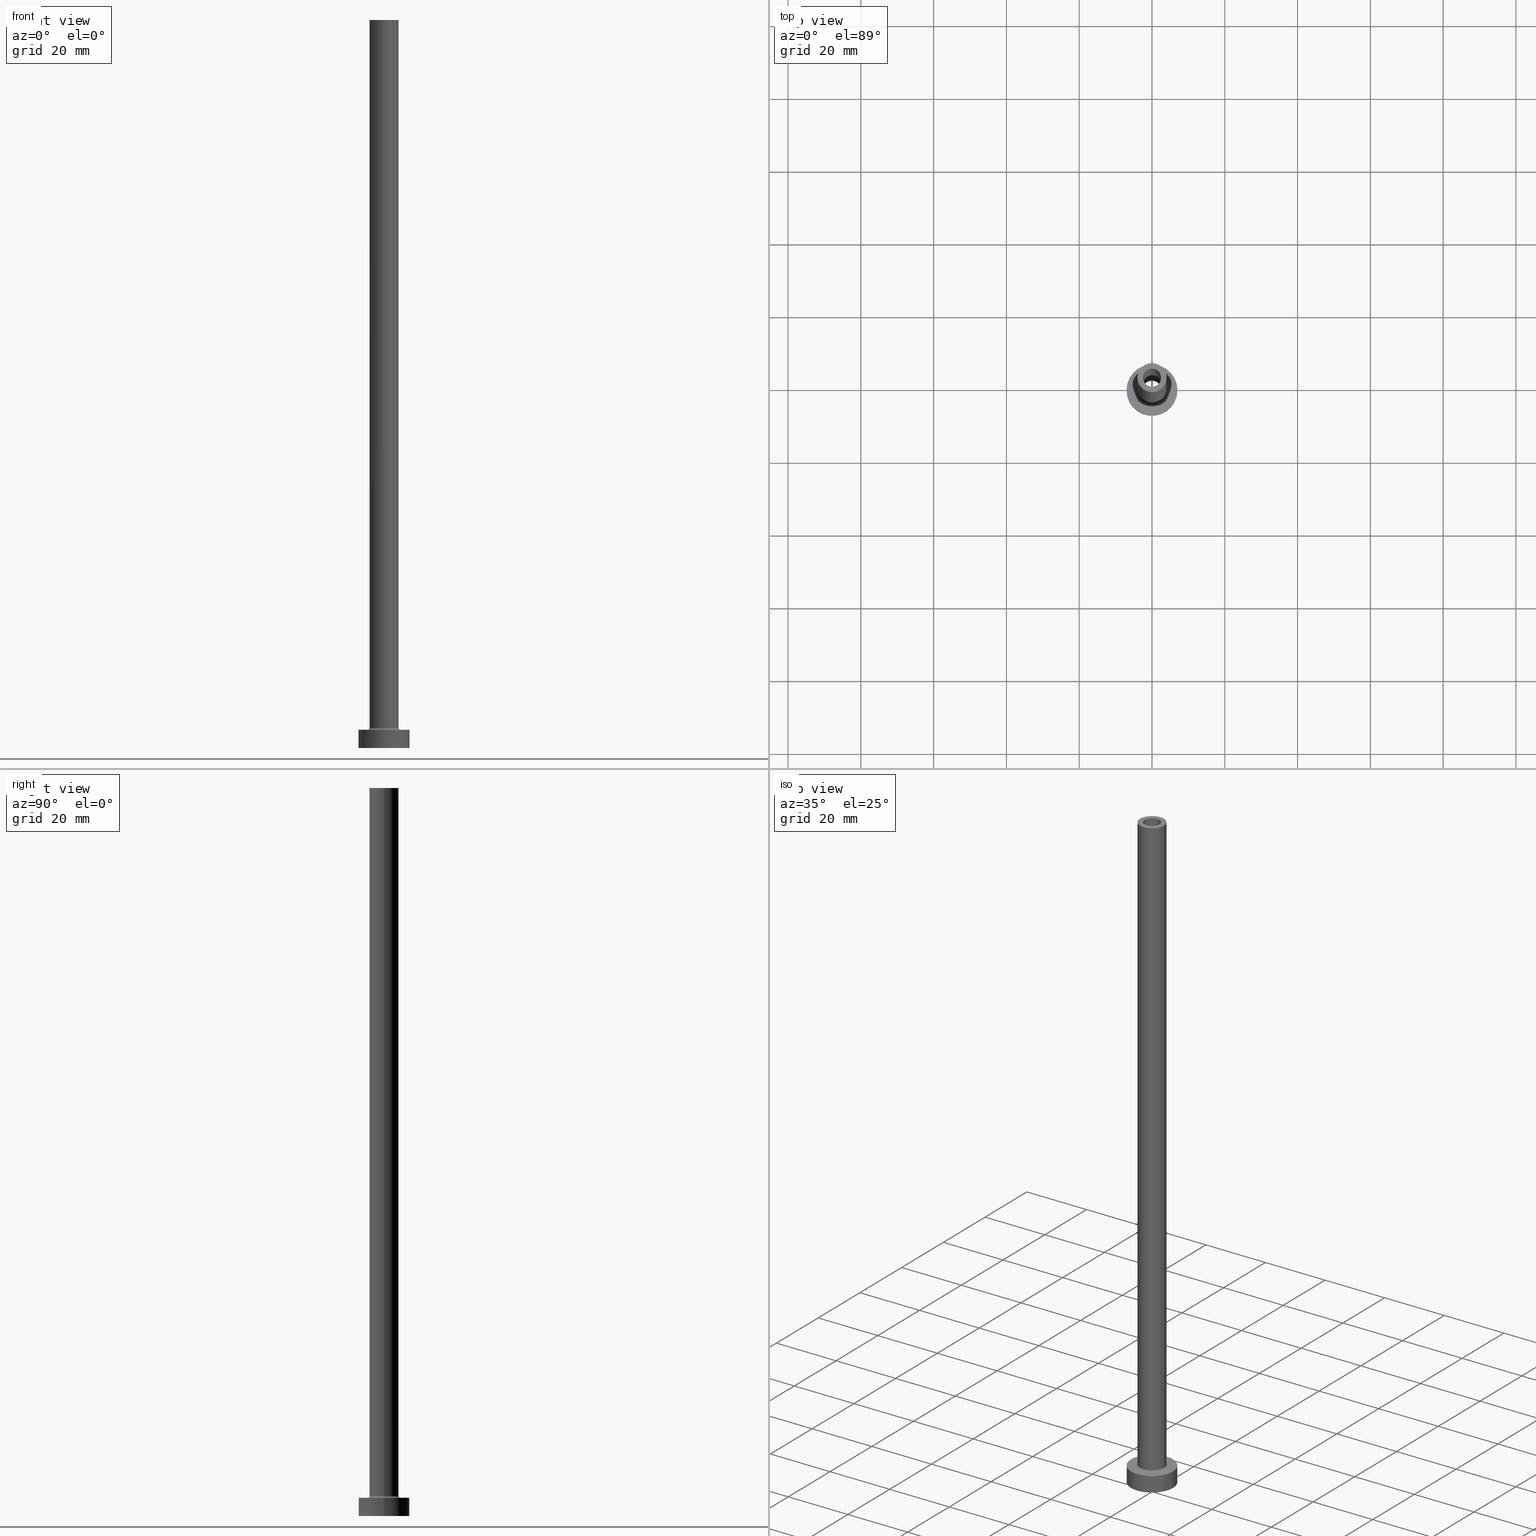
[diagram: canonical four-view strip — front | top / right | iso, engineering-drawing reading convention]
A machine part, canonical four-view strip (front | top / right | iso — engineering-drawing reading convention). The complete STEP part file that produces these views, byte-faithful:
ISO-10303-21;
HEADER;
FILE_DESCRIPTION (( 'STEP AP203' ),
    '1' );
FILE_NAME ('ef07.STEP',
    '2023-02-13T10:13:02',
    ( '' ),
    ( '' ),
    'SwSTEP 2.0',
    'SolidWorks 2019',
    '' );
FILE_SCHEMA (( 'CONFIG_CONTROL_DESIGN' ));
ENDSEC;

DATA;
#1 = APPROVAL_DATE_TIME ( #177, #4 ) ;
#2 = DIRECTION ( 'NONE',  ( -0.000000000000000000, -0.000000000000000000, -1.000000000000000000 ) ) ;
#3 = AXIS2_PLACEMENT_3D ( 'NONE', #78, #307, #124 ) ;
#4 = APPROVAL ( #142, 'NEUR�EN�' ) ;
#5 = DIRECTION ( 'NONE',  ( 1.000000000000000000, 0.000000000000000000, 0.000000000000000000 ) ) ;
#6 = PERSON_AND_ORGANIZATION ( #97, #112 ) ;
#7 = DIRECTION ( 'NONE',  ( 1.000000000000000000, 0.000000000000000000, 0.000000000000000000 ) ) ;
#8 = AXIS2_PLACEMENT_3D ( 'NONE', #171, #417, #59 ) ;
#9 = CARTESIAN_POINT ( 'NONE',  ( 0.000000000000000000, 0.000000000000000000, 0.000000000000000000 ) ) ;
#10 = APPROVAL_PERSON_ORGANIZATION ( #359, #317, #460 ) ;
#11 = CIRCLE ( 'NONE', #46, 7.000000000000000000 ) ;
#12 = EDGE_CURVE ( 'NONE', #173, #242, #96, .T. ) ;
#13 = CARTESIAN_POINT ( 'NONE',  ( 0.000000000000000000, 0.000000000000000000, 155.0000000000000284 ) ) ;
#14 = ORIENTED_EDGE ( 'NONE', *, *, #55, .T. ) ;
#15 = DIRECTION ( 'NONE',  ( 0.000000000000000000, 0.000000000000000000, -1.000000000000000000 ) ) ;
#16 = CLOSED_SHELL ( 'NONE', ( #74, #269, #335, #18, #364, #295, #279, #377, #134, #143, #239, #285, #261, #202 ) ) ;
#17 = FACE_OUTER_BOUND ( 'NONE', #50, .T. ) ;
#18 = ADVANCED_FACE ( 'NONE', ( #349 ), #28, .T. ) ;
#19 = EDGE_LOOP ( 'NONE', ( #274, #455 ) ) ;
#20 = AXIS2_PLACEMENT_3D ( 'NONE', #13, #227, #375 ) ;
#21 = CARTESIAN_POINT ( 'NONE',  ( 0.000000000000000000, 0.000000000000000000, 162.4953318805773961 ) ) ;
#22 = DIRECTION ( 'NONE',  ( -0.000000000000000000, -0.000000000000000000, -1.000000000000000000 ) ) ;
#23 = CARTESIAN_POINT ( 'NONE',  ( 0.000000000000000000, 0.000000000000000000, 0.000000000000000000 ) ) ;
#24 = CIRCLE ( 'NONE', #199, 0.5000000000000004441 ) ;
#25 = FACE_OUTER_BOUND ( 'NONE', #19, .T. ) ;
#26 = ORIENTED_EDGE ( 'NONE', *, *, #55, .F. ) ;
#27 = FACE_OUTER_BOUND ( 'NONE', #93, .T. ) ;
#28 = CYLINDRICAL_SURFACE ( 'NONE', #315, 4.000000000000000000 ) ;
#29 = DIRECTION ( 'NONE',  ( -1.000000000000000000, 0.000000000000000000, 0.000000000000000000 ) ) ;
#30 = VERTEX_POINT ( 'NONE', #213 ) ;
#31 = EDGE_CURVE ( 'NONE', #209, #299, #190, .T. ) ;
#32 = PERSON_AND_ORGANIZATION_ROLE ( 'design_owner' ) ;
#33 = ORIENTED_EDGE ( 'NONE', *, *, #370, .T. ) ;
#34 = SECURITY_CLASSIFICATION_LEVEL ( 'unclassified' ) ;
#35 = CARTESIAN_POINT ( 'NONE',  ( 0.000000000000000000, 0.000000000000000000, 200.0000000000000000 ) ) ;
#36 = CYLINDRICAL_SURFACE ( 'NONE', #216, 4.000000000000000000 ) ;
#37 = DIRECTION ( 'NONE',  ( 0.000000000000000000, 0.000000000000000000, -1.000000000000000000 ) ) ;
#38 = CIRCLE ( 'NONE', #420, 2.500000000000000000 ) ;
#39 = DATE_TIME_ROLE ( 'creation_date' ) ;
#40 = CARTESIAN_POINT ( 'NONE',  ( 7.000000000000000000, 8.572527594031473190E-16, 5.000000000000000000 ) ) ;
#41 = VERTEX_POINT ( 'NONE', #249 ) ;
#42 = LINE ( 'NONE', #433, #399 ) ;
#43 = VERTEX_POINT ( 'NONE', #40 ) ;
#44 = CARTESIAN_POINT ( 'NONE',  ( 0.000000000000000000, 0.000000000000000000, 5.500000000000005329 ) ) ;
#45 =( GEOMETRIC_REPRESENTATION_CONTEXT ( 3 ) GLOBAL_UNCERTAINTY_ASSIGNED_CONTEXT ( ( #104 ) ) GLOBAL_UNIT_ASSIGNED_CONTEXT ( ( #58, #174, #88 ) ) REPRESENTATION_CONTEXT ( 'NONE', 'WORKASPACE' ) );
#46 = AXIS2_PLACEMENT_3D ( 'NONE', #273, #135, #414 ) ;
#47 = DIRECTION ( 'NONE',  ( 1.000000000000000000, 0.000000000000000000, 0.000000000000000000 ) ) ;
#48 = EDGE_CURVE ( 'NONE', #367, #30, #67, .T. ) ;
#49 = FACE_OUTER_BOUND ( 'NONE', #109, .T. ) ;
#50 = EDGE_LOOP ( 'NONE', ( #178, #384 ) ) ;
#51 = DIRECTION ( 'NONE',  ( -0.000000000000000000, -0.000000000000000000, -1.000000000000000000 ) ) ;
#52 = APPLICATION_CONTEXT ( 'configuration controlled 3d designs of mechanical parts and assemblies' ) ;
#53 = AXIS2_PLACEMENT_3D ( 'NONE', #172, #22, #29 ) ;
#54 = DIRECTION ( 'NONE',  ( 1.000000000000000000, 0.000000000000000000, 0.000000000000000000 ) ) ;
#55 = EDGE_CURVE ( 'NONE', #441, #388, #263, .T. ) ;
#56 = DIRECTION ( 'NONE',  ( 1.000000000000000000, 0.000000000000000000, 0.000000000000000000 ) ) ;
#57 = ORIENTED_EDGE ( 'NONE', *, *, #370, .F. ) ;
#58 =( LENGTH_UNIT ( ) NAMED_UNIT ( * ) SI_UNIT ( .MILLI., .METRE. ) );
#59 = DIRECTION ( 'NONE',  ( 1.000000000000000000, 0.000000000000000000, 0.000000000000000000 ) ) ;
#60 = EDGE_LOOP ( 'NONE', ( #189, #259, #403, #423 ) ) ;
#61 = PERSON_AND_ORGANIZATION_ROLE ( 'design_supplier' ) ;
#62 = ORIENTED_EDGE ( 'NONE', *, *, #450, .F. ) ;
#63 = LOCAL_TIME ( 11, 13, 2.000000000000000000, #327 ) ;
#64 = DATE_AND_TIME ( #179, #405 ) ;
#65 = CARTESIAN_POINT ( 'NONE',  ( 0.000000000000000000, 0.000000000000000000, 200.0000000000000000 ) ) ;
#66 = CC_DESIGN_PERSON_AND_ORGANIZATION_ASSIGNMENT ( #6, #362, ( #456 ) ) ;
#67 = LINE ( 'NONE', #321, #126 ) ;
#68 = CARTESIAN_POINT ( 'NONE',  ( 0.000000000000000000, 0.000000000000000000, 0.000000000000000000 ) ) ;
#69 = CARTESIAN_POINT ( 'NONE',  ( 0.000000000000000000, 0.000000000000000000, 200.0000000000000000 ) ) ;
#70 = APPROVAL_DATE_TIME ( #293, #396 ) ;
#71 = CARTESIAN_POINT ( 'NONE',  ( 0.000000000000000000, 0.000000000000000000, 5.500000000000005329 ) ) ;
#72 = CIRCLE ( 'NONE', #137, 7.000000000000000000 ) ;
#73 = CARTESIAN_POINT ( 'NONE',  ( 0.000000000000000000, 0.000000000000000000, 200.0000000000000000 ) ) ;
#74 = ADVANCED_FACE ( 'NONE', ( #461 ), #360, .F. ) ;
#75 = ORIENTED_EDGE ( 'NONE', *, *, #165, .T. ) ;
#76 = DIRECTION ( 'NONE',  ( 1.000000000000000000, 0.000000000000000000, 0.000000000000000000 ) ) ;
#77 = ORIENTED_EDGE ( 'NONE', *, *, #200, .T. ) ;
#78 = CARTESIAN_POINT ( 'NONE',  ( 0.000000000000000000, 0.000000000000000000, 5.000000000000000000 ) ) ;
#79 = ORIENTED_EDGE ( 'NONE', *, *, #210, .T. ) ;
#80 = DIRECTION ( 'NONE',  ( 0.000000000000000000, 0.000000000000000000, 1.000000000000000000 ) ) ;
#81 = ORIENTED_EDGE ( 'NONE', *, *, #344, .T. ) ;
#82 = CARTESIAN_POINT ( 'NONE',  ( 7.000000000000000000, 8.572527594031473190E-16, 0.000000000000000000 ) ) ;
#83 = AXIS2_PLACEMENT_3D ( 'NONE', #270, #267, #264 ) ;
#84 = DIRECTION ( 'NONE',  ( -0.000000000000000000, -0.000000000000000000, -1.000000000000000000 ) ) ;
#85 = PRODUCT_DEFINITION ( 'NEZN�M�', '', #326, #211 ) ;
#86 = DIRECTION ( 'NONE',  ( 0.000000000000000000, 0.000000000000000000, -1.000000000000000000 ) ) ;
#87 = ORIENTED_EDGE ( 'NONE', *, *, #111, .T. ) ;
#88 =( NAMED_UNIT ( * ) SI_UNIT ( $, .STERADIAN. ) SOLID_ANGLE_UNIT ( ) );
#89 = ORIENTED_EDGE ( 'NONE', *, *, #450, .T. ) ;
#90 = AXIS2_PLACEMENT_3D ( 'NONE', #312, #280, #130 ) ;
#91 = EDGE_CURVE ( 'NONE', #316, #247, #434, .T. ) ;
#92 = DIRECTION ( 'NONE',  ( 0.000000000000000000, 0.000000000000000000, -1.000000000000000000 ) ) ;
#93 = EDGE_LOOP ( 'NONE', ( #203, #87, #347, #278 ) ) ;
#94 = CARTESIAN_POINT ( 'NONE',  ( -2.500000000000000000, 0.000000000000000000, 155.0000000000000284 ) ) ;
#95 = ORIENTED_EDGE ( 'NONE', *, *, #149, .F. ) ;
#96 = CIRCLE ( 'NONE', #8, 4.000000000000000000 ) ;
#97 = PERSON ( 'NEUR�EN�', 'NEUR�EN�', 'NEUR�EN�', ('NEUR�EN�'), ('NEUR�EN�'), ('NEUR�EN�') ) ;
#98 = DATE_AND_TIME ( #214, #184 ) ;
#99 = DIRECTION ( 'NONE',  ( -1.000000000000000000, 0.000000000000000000, 0.000000000000000000 ) ) ;
#100 = SHAPE_DEFINITION_REPRESENTATION ( #271, #235 ) ;
#101 = CIRCLE ( 'NONE', #204, 2.649999999999999911 ) ;
#102 = DIRECTION ( 'NONE',  ( 1.000000000000000000, 0.000000000000000000, 0.000000000000000000 ) ) ;
#103 = CC_DESIGN_PERSON_AND_ORGANIZATION_ASSIGNMENT ( #254, #61, ( #326 ) ) ;
#104 = UNCERTAINTY_MEASURE_WITH_UNIT (LENGTH_MEASURE( 1.000000000000000082E-05 ), #58, 'distance_accuracy_value', 'NONE');
#105 = CARTESIAN_POINT ( 'NONE',  ( 0.000000000000000000, 0.000000000000000000, 155.0000000000000284 ) ) ;
#106 = EDGE_LOOP ( 'NONE', ( #262, #380, #244, #319 ) ) ;
#107 = PERSON_AND_ORGANIZATION_ROLE ( 'creator' ) ;
#108 = DIRECTION ( 'NONE',  ( -1.000000000000000000, 0.000000000000000000, 0.000000000000000000 ) ) ;
#109 = EDGE_LOOP ( 'NONE', ( #175, #196, #268, #139 ) ) ;
#110 = APPROVAL_DATE_TIME ( #98, #317 ) ;
#111 = EDGE_CURVE ( 'NONE', #43, #229, #113, .T. ) ;
#112 = ORGANIZATION ( 'NEUR�EN�', 'NEUR�EN�', '' ) ;
#113 = LINE ( 'NONE', #325, #308 ) ;
#114 = AXIS2_PLACEMENT_3D ( 'NONE', #65, #284, #185 ) ;
#115 = DIRECTION ( 'NONE',  ( 0.000000000000000000, 0.000000000000000000, 1.000000000000000000 ) ) ;
#116 = CARTESIAN_POINT ( 'NONE',  ( 4.000000000000000000, 4.898587196589412829E-16, 200.0000000000000000 ) ) ;
#117 = AXIS2_PLACEMENT_3D ( 'NONE', #69, #37, #108 ) ;
#118 = EDGE_CURVE ( 'NONE', #247, #316, #378, .T. ) ;
#119 = EDGE_LOOP ( 'NONE', ( #95, #75, #453, #443 ) ) ;
#120 = FACE_BOUND ( 'NONE', #223, .T. ) ;
#121 = AXIS2_PLACEMENT_3D ( 'NONE', #68, #429, #145 ) ;
#122 = AXIS2_PLACEMENT_3D ( 'NONE', #410, #51, #164 ) ;
#123 = ORIENTED_EDGE ( 'NONE', *, *, #186, .F. ) ;
#124 = DIRECTION ( 'NONE',  ( 1.000000000000000000, 0.000000000000000000, 0.000000000000000000 ) ) ;
#125 = LINE ( 'NONE', #368, #304 ) ;
#126 = VECTOR ( 'NONE', #215, 1000.000000000000000 ) ;
#127 = CC_DESIGN_PERSON_AND_ORGANIZATION_ASSIGNMENT ( #289, #32, ( #343 ) ) ;
#128 = DIRECTION ( 'NONE',  ( 0.000000000000000000, 0.000000000000000000, -1.000000000000000000 ) ) ;
#129 = CIRCLE ( 'NONE', #114, 4.000000000000000000 ) ;
#130 = DIRECTION ( 'NONE',  ( 1.000000000000000000, 0.000000000000000000, 0.000000000000000000 ) ) ;
#131 = PRODUCT_RELATED_PRODUCT_CATEGORY ( 'detail', '', ( #343 ) ) ;
#132 = EDGE_LOOP ( 'NONE', ( #353, #351, #306, #57 ) ) ;
#133 = VERTEX_POINT ( 'NONE', #282 ) ;
#134 = ADVANCED_FACE ( 'NONE', ( #180 ), #36, .T. ) ;
#135 = DIRECTION ( 'NONE',  ( 0.000000000000000000, 0.000000000000000000, 1.000000000000000000 ) ) ;
#136 = ORIENTED_EDGE ( 'NONE', *, *, #186, .T. ) ;
#137 = AXIS2_PLACEMENT_3D ( 'NONE', #9, #115, #438 ) ;
#138 = CARTESIAN_POINT ( 'NONE',  ( 2.500000000000000000, 3.061616997868382648E-16, 200.0000000000000000 ) ) ;
#139 = ORIENTED_EDGE ( 'NONE', *, *, #301, .T. ) ;
#140 = MECHANICAL_CONTEXT ( 'NONE', #357, 'mechanical' ) ;
#141 = DIRECTION ( 'NONE',  ( 0.000000000000000000, 0.000000000000000000, 1.000000000000000000 ) ) ;
#142 = APPROVAL_STATUS ( 'not_yet_approved' ) ;
#143 = ADVANCED_FACE ( 'NONE', ( #290, #292 ), #331, .T. ) ;
#144 = DIRECTION ( 'NONE',  ( 0.000000000000000000, 0.000000000000000000, 1.000000000000000000 ) ) ;
#145 = DIRECTION ( 'NONE',  ( 1.000000000000000000, 0.000000000000000000, 0.000000000000000000 ) ) ;
#146 = AXIS2_PLACEMENT_3D ( 'NONE', #158, #153, #76 ) ;
#147 = DIRECTION ( 'NONE',  ( 0.000000000000000000, 0.000000000000000000, 1.000000000000000000 ) ) ;
#148 = CARTESIAN_POINT ( 'NONE',  ( 0.000000000000000000, 0.000000000000000000, 200.0000000000000000 ) ) ;
#149 = EDGE_CURVE ( 'NONE', #242, #173, #129, .T. ) ;
#150 = ORIENTED_EDGE ( 'NONE', *, *, #348, .T. ) ;
#151 = APPLICATION_PROTOCOL_DEFINITION ( 'international standard', 'config_control_design', 1994, #52 ) ;
#152 = CARTESIAN_POINT ( 'NONE',  ( 0.000000000000000000, 0.000000000000000000, 0.000000000000000000 ) ) ;
#153 = DIRECTION ( 'NONE',  ( 0.000000000000000000, 0.000000000000000000, 1.000000000000000000 ) ) ;
#154 = AXIS2_PLACEMENT_3D ( 'NONE', #243, #84, #54 ) ;
#155 = EDGE_CURVE ( 'NONE', #41, #313, #101, .T. ) ;
#156 = LINE ( 'NONE', #341, #354 ) ;
#157 = ORIENTED_EDGE ( 'NONE', *, *, #250, .T. ) ;
#158 = CARTESIAN_POINT ( 'NONE',  ( 0.000000000000000000, 0.000000000000000000, 155.0000000000000284 ) ) ;
#159 = AXIS2_PLACEMENT_3D ( 'NONE', #73, #144, #392 ) ;
#160 = FACE_OUTER_BOUND ( 'NONE', #451, .T. ) ;
#161 = CIRCLE ( 'NONE', #286, 2.500000000000000000 ) ;
#162 = CIRCLE ( 'NONE', #257, 7.000000000000000000 ) ;
#163 = VERTEX_POINT ( 'NONE', #430 ) ;
#164 = DIRECTION ( 'NONE',  ( -1.000000000000000000, 0.000000000000000000, 0.000000000000000000 ) ) ;
#165 = EDGE_CURVE ( 'NONE', #242, #316, #42, .T. ) ;
#166 = CARTESIAN_POINT ( 'NONE',  ( -2.500000000000000000, 0.000000000000000000, 200.0000000000000000 ) ) ;
#167 = DIRECTION ( 'NONE',  ( 0.000000000000000000, -1.000000000000000000, 0.000000000000000000 ) ) ;
#168 = CIRCLE ( 'NONE', #371, 2.500000000000000000 ) ;
#169 = CYLINDRICAL_SURFACE ( 'NONE', #53, 7.000000000000000000 ) ;
#170 = CC_DESIGN_DATE_AND_TIME_ASSIGNMENT ( #64, #395, ( #456 ) ) ;
#171 = CARTESIAN_POINT ( 'NONE',  ( 0.000000000000000000, 0.000000000000000000, 200.0000000000000000 ) ) ;
#172 = CARTESIAN_POINT ( 'NONE',  ( 0.000000000000000000, 0.000000000000000000, 5.000000000000000000 ) ) ;
#173 = VERTEX_POINT ( 'NONE', #427 ) ;
#174 =( NAMED_UNIT ( * ) PLANE_ANGLE_UNIT ( ) SI_UNIT ( $, .RADIAN. ) );
#175 = ORIENTED_EDGE ( 'NONE', *, *, #111, .F. ) ;
#176 = CIRCLE ( 'NONE', #146, 2.649999999999999911 ) ;
#177 = DATE_AND_TIME ( #251, #398 ) ;
#178 = ORIENTED_EDGE ( 'NONE', *, *, #155, .F. ) ;
#179 = CALENDAR_DATE ( 2023, 13, 2 ) ;
#180 = FACE_OUTER_BOUND ( 'NONE', #253, .T. ) ;
#181 = PERSON_AND_ORGANIZATION ( #97, #112 ) ;
#182 = DIRECTION ( 'NONE',  ( -0.000000000000000000, -0.000000000000000000, -1.000000000000000000 ) ) ;
#183 = MANIFOLD_SOLID_BREP ( 'Odebrat vysunut�m4', #16 ) ;
#184 = LOCAL_TIME ( 11, 13, 2.000000000000000000, #220 ) ;
#185 = DIRECTION ( 'NONE',  ( 1.000000000000000000, 0.000000000000000000, 0.000000000000000000 ) ) ;
#186 = EDGE_CURVE ( 'NONE', #388, #441, #38, .T. ) ;
#187 = COORDINATED_UNIVERSAL_TIME_OFFSET ( 1, 0, .AHEAD. ) ;
#188 = CARTESIAN_POINT ( 'NONE',  ( 0.000000000000000000, 0.000000000000000000, 200.0000000000000000 ) ) ;
#189 = ORIENTED_EDGE ( 'NONE', *, *, #118, .F. ) ;
#190 = CIRCLE ( 'NONE', #300, 2.649999999999999911 ) ;
#191 = DIRECTION ( 'NONE',  ( 1.000000000000000000, 0.000000000000000000, 0.000000000000000000 ) ) ;
#192 = DIRECTION ( 'NONE',  ( 0.000000000000000000, 0.000000000000000000, 1.000000000000000000 ) ) ;
#193 = CC_DESIGN_PERSON_AND_ORGANIZATION_ASSIGNMENT ( #181, #107, ( #326 ) ) ;
#194 = FACE_OUTER_BOUND ( 'NONE', #60, .T. ) ;
#195 = FACE_BOUND ( 'NONE', #374, .T. ) ;
#196 = ORIENTED_EDGE ( 'NONE', *, *, #250, .F. ) ;
#197 = CARTESIAN_POINT ( 'NONE',  ( 4.000000000000000000, 4.898587196589412829E-16, 5.500000000000005329 ) ) ;
#198 = LOCAL_TIME ( 11, 13, 2.000000000000000000, #187 ) ;
#199 = AXIS2_PLACEMENT_3D ( 'NONE', #260, #225, #296 ) ;
#200 = EDGE_CURVE ( 'NONE', #386, #163, #168, .T. ) ;
#201 = CARTESIAN_POINT ( 'NONE',  ( 2.649999999999999911, 3.245314017740485962E-16, 162.4953318805773961 ) ) ;
#202 = ADVANCED_FACE ( 'NONE', ( #221 ), #459, .F. ) ;
#203 = ORIENTED_EDGE ( 'NONE', *, *, #348, .F. ) ;
#204 = AXIS2_PLACEMENT_3D ( 'NONE', #366, #222, #323 ) ;
#205 = PLANE ( 'NONE',  #413 ) ;
#206 = ORIENTED_EDGE ( 'NONE', *, *, #118, .T. ) ;
#207 = ORIENTED_EDGE ( 'NONE', *, *, #332, .T. ) ;
#208 = APPROVAL_ROLE ( '' ) ;
#209 = VERTEX_POINT ( 'NONE', #248 ) ;
#210 = EDGE_CURVE ( 'NONE', #313, #41, #176, .T. ) ;
#211 = DESIGN_CONTEXT ( 'detailed design', #52, 'design' ) ;
#212 = CIRCLE ( 'NONE', #3, 4.500000000000000888 ) ;
#213 = CARTESIAN_POINT ( 'NONE',  ( -7.000000000000000000, 0.000000000000000000, 0.000000000000000000 ) ) ;
#214 = CALENDAR_DATE ( 2023, 13, 2 ) ;
#215 = DIRECTION ( 'NONE',  ( -0.000000000000000000, -0.000000000000000000, -1.000000000000000000 ) ) ;
#216 = AXIS2_PLACEMENT_3D ( 'NONE', #255, #2, #401 ) ;
#217 = EDGE_CURVE ( 'NONE', #247, #277, #24, .T. ) ;
#218 = DIRECTION ( 'NONE',  ( -1.000000000000000000, 0.000000000000000000, 0.000000000000000000 ) ) ;
#219 = ORIENTED_EDGE ( 'NONE', *, *, #431, .T. ) ;
#220 = COORDINATED_UNIVERSAL_TIME_OFFSET ( 1, 0, .AHEAD. ) ;
#221 = FACE_OUTER_BOUND ( 'NONE', #329, .T. ) ;
#222 = DIRECTION ( 'NONE',  ( 0.000000000000000000, 0.000000000000000000, 1.000000000000000000 ) ) ;
#223 = EDGE_LOOP ( 'NONE', ( #77, #89 ) ) ;
#224 = AXIS2_PLACEMENT_3D ( 'NONE', #188, #294, #363 ) ;
#225 = DIRECTION ( 'NONE',  ( 1.224646799147353207E-16, 1.000000000000000000, -0.000000000000000000 ) ) ;
#226 = ORIENTED_EDGE ( 'NONE', *, *, #12, .T. ) ;
#227 = DIRECTION ( 'NONE',  ( 0.000000000000000000, 0.000000000000000000, 1.000000000000000000 ) ) ;
#228 = AXIS2_PLACEMENT_3D ( 'NONE', #393, #425, #99 ) ;
#229 = VERTEX_POINT ( 'NONE', #82 ) ;
#230 = CYLINDRICAL_SURFACE ( 'NONE', #340, 2.649999999999999911 ) ;
#231 = ORIENTED_EDGE ( 'NONE', *, *, #12, .F. ) ;
#232 = EDGE_CURVE ( 'NONE', #173, #247, #125, .T. ) ;
#233 = DIRECTION ( 'NONE',  ( 1.000000000000000000, 0.000000000000000000, -0.000000000000000000 ) ) ;
#234 = AXIS2_PLACEMENT_3D ( 'NONE', #258, #436, #356 ) ;
#235 = ADVANCED_BREP_SHAPE_REPRESENTATION ( 'ef07', ( #183, #121 ), #45 ) ;
#236 = CARTESIAN_POINT ( 'NONE',  ( -4.000000000000000000, 0.000000000000000000, 5.500000000000005329 ) ) ;
#237 = AXIS2_PLACEMENT_3D ( 'NONE', #44, #192, #47 ) ;
#238 = CARTESIAN_POINT ( 'NONE',  ( -2.649999999999999911, 0.000000000000000000, 162.4953318805773961 ) ) ;
#239 = ADVANCED_FACE ( 'NONE', ( #412 ), #428, .F. ) ;
#240 = CARTESIAN_POINT ( 'NONE',  ( 0.000000000000000000, 0.000000000000000000, 0.000000000000000000 ) ) ;
#241 = ORIENTED_EDGE ( 'NONE', *, *, #31, .F. ) ;
#242 = VERTEX_POINT ( 'NONE', #116 ) ;
#243 = CARTESIAN_POINT ( 'NONE',  ( 0.000000000000000000, 0.000000000000000000, 5.000000000000000000 ) ) ;
#244 = ORIENTED_EDGE ( 'NONE', *, *, #416, .T. ) ;
#245 = CARTESIAN_POINT ( 'NONE',  ( 4.500000000000000888, 0.000000000000000000, 5.500000000000005329 ) ) ;
#246 = EDGE_CURVE ( 'NONE', #133, #277, #212, .T. ) ;
#247 = VERTEX_POINT ( 'NONE', #236 ) ;
#248 = CARTESIAN_POINT ( 'NONE',  ( -2.649999999999999911, 0.000000000000000000, 0.000000000000000000 ) ) ;
#249 = CARTESIAN_POINT ( 'NONE',  ( -2.649999999999999911, 0.000000000000000000, 155.0000000000000284 ) ) ;
#250 = EDGE_CURVE ( 'NONE', #367, #43, #437, .T. ) ;
#251 = CALENDAR_DATE ( 2023, 13, 2 ) ;
#252 = DIRECTION ( 'NONE',  ( 0.000000000000000000, 0.000000000000000000, 1.000000000000000000 ) ) ;
#253 = EDGE_LOOP ( 'NONE', ( #302, #231, #338, #206 ) ) ;
#254 = PERSON_AND_ORGANIZATION ( #97, #112 ) ;
#255 = CARTESIAN_POINT ( 'NONE',  ( 0.000000000000000000, 0.000000000000000000, 200.0000000000000000 ) ) ;
#256 = ORIENTED_EDGE ( 'NONE', *, *, #332, .F. ) ;
#257 = AXIS2_PLACEMENT_3D ( 'NONE', #276, #342, #345 ) ;
#258 = CARTESIAN_POINT ( 'NONE',  ( 0.000000000000000000, 0.000000000000000000, 5.500000000000005329 ) ) ;
#259 = ORIENTED_EDGE ( 'NONE', *, *, #217, .T. ) ;
#260 = CARTESIAN_POINT ( 'NONE',  ( -4.500000000000000888, 5.510910596163089556E-16, 5.500000000000005329 ) ) ;
#261 = ADVANCED_FACE ( 'NONE', ( #120, #17 ), #376, .F. ) ;
#262 = ORIENTED_EDGE ( 'NONE', *, *, #155, .T. ) ;
#263 = CIRCLE ( 'NONE', #224, 2.500000000000000000 ) ;
#264 = DIRECTION ( 'NONE',  ( -1.000000000000000000, 0.000000000000000000, 0.000000000000000000 ) ) ;
#265 = EDGE_LOOP ( 'NONE', ( #226, #394 ) ) ;
#266 = AXIS2_PLACEMENT_3D ( 'NONE', #240, #382, #452 ) ;
#267 = DIRECTION ( 'NONE',  ( 0.000000000000000000, 0.000000000000000000, -1.000000000000000000 ) ) ;
#268 = ORIENTED_EDGE ( 'NONE', *, *, #48, .T. ) ;
#269 = ADVANCED_FACE ( 'NONE', ( #446 ), #404, .F. ) ;
#270 = CARTESIAN_POINT ( 'NONE',  ( 0.000000000000000000, 0.000000000000000000, 162.4953318805773961 ) ) ;
#271 = PRODUCT_DEFINITION_SHAPE ( 'NONE', 'NONE',  #85 ) ;
#272 = CARTESIAN_POINT ( 'NONE',  ( 0.000000000000000000, 0.000000000000000000, 155.0000000000000284 ) ) ;
#273 = CARTESIAN_POINT ( 'NONE',  ( 0.000000000000000000, 0.000000000000000000, 0.000000000000000000 ) ) ;
#274 = ORIENTED_EDGE ( 'NONE', *, *, #301, .F. ) ;
#275 = CC_DESIGN_DATE_AND_TIME_ASSIGNMENT ( #330, #39, ( #85 ) ) ;
#276 = CARTESIAN_POINT ( 'NONE',  ( 0.000000000000000000, 0.000000000000000000, 5.000000000000000000 ) ) ;
#277 = VERTEX_POINT ( 'NONE', #445 ) ;
#278 = ORIENTED_EDGE ( 'NONE', *, *, #48, .F. ) ;
#279 = ADVANCED_FACE ( 'NONE', ( #195, #160 ), #334, .T. ) ;
#280 = DIRECTION ( 'NONE',  ( 0.000000000000000000, 0.000000000000000000, 1.000000000000000000 ) ) ;
#281 = EDGE_LOOP ( 'NONE', ( #14, #81, #421, #256 ) ) ;
#282 = CARTESIAN_POINT ( 'NONE',  ( 4.500000000000000888, 0.000000000000000000, 5.000000000000002665 ) ) ;
#283 = CALENDAR_DATE ( 2023, 13, 2 ) ;
#284 = DIRECTION ( 'NONE',  ( 0.000000000000000000, 0.000000000000000000, 1.000000000000000000 ) ) ;
#285 = ADVANCED_FACE ( 'NONE', ( #333 ), #230, .F. ) ;
#286 = AXIS2_PLACEMENT_3D ( 'NONE', #272, #350, #56 ) ;
#287 = AXIS2_PLACEMENT_3D ( 'NONE', #402, #80, #233 ) ;
#288 = VECTOR ( 'NONE', #92, 1000.000000000000000 ) ;
#289 = PERSON_AND_ORGANIZATION ( #97, #112 ) ;
#290 = FACE_BOUND ( 'NONE', #415, .T. ) ;
#291 = APPROVAL_ROLE ( '' ) ;
#292 = FACE_OUTER_BOUND ( 'NONE', #265, .T. ) ;
#293 = DATE_AND_TIME ( #387, #198 ) ;
#294 = DIRECTION ( 'NONE',  ( 0.000000000000000000, 0.000000000000000000, 1.000000000000000000 ) ) ;
#295 = ADVANCED_FACE ( 'NONE', ( #49 ), #337, .T. ) ;
#296 = DIRECTION ( 'NONE',  ( -1.000000000000000000, 1.224646799147351482E-16, 0.000000000000000000 ) ) ;
#297 = ORIENTED_EDGE ( 'NONE', *, *, #246, .T. ) ;
#298 = CARTESIAN_POINT ( 'NONE',  ( 0.000000000000000000, 0.000000000000000000, 5.000000000000000000 ) ) ;
#299 = VERTEX_POINT ( 'NONE', #372 ) ;
#300 = AXIS2_PLACEMENT_3D ( 'NONE', #152, #182, #5 ) ;
#301 = EDGE_CURVE ( 'NONE', #30, #229, #72, .T. ) ;
#302 = ORIENTED_EDGE ( 'NONE', *, *, #165, .F. ) ;
#303 = CC_DESIGN_SECURITY_CLASSIFICATION ( #456, ( #326 ) ) ;
#304 = VECTOR ( 'NONE', #408, 1000.000000000000000 ) ;
#305 = DIRECTION ( 'NONE',  ( -1.000000000000000000, 0.000000000000000000, 0.000000000000000000 ) ) ;
#306 = ORIENTED_EDGE ( 'NONE', *, *, #411, .T. ) ;
#307 = DIRECTION ( 'NONE',  ( -0.000000000000000000, -0.000000000000000000, -1.000000000000000000 ) ) ;
#308 = VECTOR ( 'NONE', #358, 1000.000000000000000 ) ;
#309 = DIRECTION ( 'NONE',  ( 0.000000000000000000, 0.000000000000000000, -1.000000000000000000 ) ) ;
#310 = CC_DESIGN_APPROVAL ( #4, ( #456 ) ) ;
#311 = CIRCLE ( 'NONE', #346, 0.5000000000000004441 ) ;
#312 = CARTESIAN_POINT ( 'NONE',  ( 0.000000000000000000, 0.000000000000000000, 5.500000000000005329 ) ) ;
#313 = VERTEX_POINT ( 'NONE', #373 ) ;
#314 = CARTESIAN_POINT ( 'NONE',  ( -7.000000000000000000, 0.000000000000000000, 5.000000000000000000 ) ) ;
#315 = AXIS2_PLACEMENT_3D ( 'NONE', #35, #397, #218 ) ;
#316 = VERTEX_POINT ( 'NONE', #197 ) ;
#317 = APPROVAL ( #435, 'NEUR�EN�' ) ;
#318 = APPROVAL_PERSON_ORGANIZATION ( #426, #4, #208 ) ;
#319 = ORIENTED_EDGE ( 'NONE', *, *, #431, .F. ) ;
#320 = CIRCLE ( 'NONE', #154, 4.500000000000000888 ) ;
#321 = CARTESIAN_POINT ( 'NONE',  ( -7.000000000000000000, 0.000000000000000000, 5.000000000000000000 ) ) ;
#322 = APPROVAL_STATUS ( 'not_yet_approved' ) ;
#323 = DIRECTION ( 'NONE',  ( 1.000000000000000000, 0.000000000000000000, 0.000000000000000000 ) ) ;
#324 = COORDINATED_UNIVERSAL_TIME_OFFSET ( 1, 0, .AHEAD. ) ;
#325 = CARTESIAN_POINT ( 'NONE',  ( 7.000000000000000000, 8.572527594031473190E-16, 5.000000000000000000 ) ) ;
#326 = PRODUCT_DEFINITION_FORMATION_WITH_SPECIFIED_SOURCE ( 'LIBOVOLN�', '', #343, .NOT_KNOWN. ) ;
#327 = COORDINATED_UNIVERSAL_TIME_OFFSET ( 1, 0, .AHEAD. ) ;
#328 = DIRECTION ( 'NONE',  ( -0.000000000000000000, -0.000000000000000000, -1.000000000000000000 ) ) ;
#329 = EDGE_LOOP ( 'NONE', ( #409, #136, #207, #62 ) ) ;
#330 = DATE_AND_TIME ( #283, #63 ) ;
#331 = PLANE ( 'NONE',  #159 ) ;
#332 = EDGE_CURVE ( 'NONE', #441, #386, #156, .T. ) ;
#333 = FACE_OUTER_BOUND ( 'NONE', #458, .T. ) ;
#334 = PLANE ( 'NONE',  #287 ) ;
#335 = ADVANCED_FACE ( 'NONE', ( #194 ), #457, .F. ) ;
#336 = DIRECTION ( 'NONE',  ( 0.000000000000000000, 0.000000000000000000, 1.000000000000000000 ) ) ;
#337 = CYLINDRICAL_SURFACE ( 'NONE', #122, 7.000000000000000000 ) ;
#338 = ORIENTED_EDGE ( 'NONE', *, *, #232, .T. ) ;
#339 = APPROVAL_PERSON_ORGANIZATION ( #389, #396, #291 ) ;
#340 = AXIS2_PLACEMENT_3D ( 'NONE', #21, #15, #305 ) ;
#341 = CARTESIAN_POINT ( 'NONE',  ( -2.500000000000000000, 0.000000000000000000, 200.0000000000000000 ) ) ;
#342 = DIRECTION ( 'NONE',  ( 0.000000000000000000, 0.000000000000000000, 1.000000000000000000 ) ) ;
#343 = PRODUCT ( 'ef07', 'ef07', '', ( #140 ) ) ;
#344 = EDGE_CURVE ( 'NONE', #388, #163, #442, .T. ) ;
#345 = DIRECTION ( 'NONE',  ( 1.000000000000000000, 0.000000000000000000, 0.000000000000000000 ) ) ;
#346 = AXIS2_PLACEMENT_3D ( 'NONE', #245, #167, #86 ) ;
#347 = ORIENTED_EDGE ( 'NONE', *, *, #391, .T. ) ;
#348 = EDGE_CURVE ( 'NONE', #43, #367, #162, .T. ) ;
#349 = FACE_OUTER_BOUND ( 'NONE', #119, .T. ) ;
#350 = DIRECTION ( 'NONE',  ( 0.000000000000000000, 0.000000000000000000, 1.000000000000000000 ) ) ;
#351 = ORIENTED_EDGE ( 'NONE', *, *, #91, .F. ) ;
#352 = COORDINATED_UNIVERSAL_TIME_OFFSET ( 1, 0, .AHEAD. ) ;
#353 = ORIENTED_EDGE ( 'NONE', *, *, #217, .F. ) ;
#354 = VECTOR ( 'NONE', #439, 1000.000000000000000 ) ;
#355 = PERSON_AND_ORGANIZATION_ROLE ( 'creator' ) ;
#356 = DIRECTION ( 'NONE',  ( 1.000000000000000000, 0.000000000000000000, 0.000000000000000000 ) ) ;
#357 = APPLICATION_CONTEXT ( 'configuration controlled 3d designs of mechanical parts and assemblies' ) ;
#358 = DIRECTION ( 'NONE',  ( -0.000000000000000000, -0.000000000000000000, -1.000000000000000000 ) ) ;
#359 = PERSON_AND_ORGANIZATION ( #97, #112 ) ;
#360 = CYLINDRICAL_SURFACE ( 'NONE', #117, 2.500000000000000000 ) ;
#361 = AXIS2_PLACEMENT_3D ( 'NONE', #298, #336, #191 ) ;
#362 = PERSON_AND_ORGANIZATION_ROLE ( 'classification_officer' ) ;
#363 = DIRECTION ( 'NONE',  ( 1.000000000000000000, 0.000000000000000000, 0.000000000000000000 ) ) ;
#364 = ADVANCED_FACE ( 'NONE', ( #27 ), #169, .T. ) ;
#365 = ORIENTED_EDGE ( 'NONE', *, *, #416, .F. ) ;
#366 = CARTESIAN_POINT ( 'NONE',  ( 0.000000000000000000, 0.000000000000000000, 155.0000000000000284 ) ) ;
#367 = VERTEX_POINT ( 'NONE', #314 ) ;
#368 = CARTESIAN_POINT ( 'NONE',  ( -4.000000000000000000, 0.000000000000000000, 200.0000000000000000 ) ) ;
#369 = ORIENTED_EDGE ( 'NONE', *, *, #31, .T. ) ;
#370 = EDGE_CURVE ( 'NONE', #277, #133, #320, .T. ) ;
#371 = AXIS2_PLACEMENT_3D ( 'NONE', #105, #252, #390 ) ;
#372 = CARTESIAN_POINT ( 'NONE',  ( 2.649999999999999911, 3.245314017740485962E-16, 0.000000000000000000 ) ) ;
#373 = CARTESIAN_POINT ( 'NONE',  ( 2.649999999999999911, 3.245314017740485962E-16, 155.0000000000000284 ) ) ;
#374 = EDGE_LOOP ( 'NONE', ( #297, #33 ) ) ;
#375 = DIRECTION ( 'NONE',  ( 1.000000000000000000, 0.000000000000000000, -0.000000000000000000 ) ) ;
#376 = PLANE ( 'NONE',  #20 ) ;
#377 = ADVANCED_FACE ( 'NONE', ( #422, #25 ), #205, .F. ) ;
#378 = CIRCLE ( 'NONE', #234, 4.000000000000000000 ) ;
#379 = LINE ( 'NONE', #201, #383 ) ;
#380 = ORIENTED_EDGE ( 'NONE', *, *, #424, .T. ) ;
#381 = CC_DESIGN_APPROVAL ( #396, ( #85 ) ) ;
#382 = DIRECTION ( 'NONE',  ( -0.000000000000000000, -0.000000000000000000, -1.000000000000000000 ) ) ;
#383 = VECTOR ( 'NONE', #128, 1000.000000000000000 ) ;
#384 = ORIENTED_EDGE ( 'NONE', *, *, #210, .F. ) ;
#385 = LINE ( 'NONE', #238, #444 ) ;
#386 = VERTEX_POINT ( 'NONE', #94 ) ;
#387 = CALENDAR_DATE ( 2023, 13, 2 ) ;
#388 = VERTEX_POINT ( 'NONE', #449 ) ;
#389 = PERSON_AND_ORGANIZATION ( #97, #112 ) ;
#390 = DIRECTION ( 'NONE',  ( 1.000000000000000000, 0.000000000000000000, 0.000000000000000000 ) ) ;
#391 = EDGE_CURVE ( 'NONE', #229, #30, #11, .T. ) ;
#392 = DIRECTION ( 'NONE',  ( 1.000000000000000000, 0.000000000000000000, -0.000000000000000000 ) ) ;
#393 = CARTESIAN_POINT ( 'NONE',  ( 0.000000000000000000, 0.000000000000000000, 200.0000000000000000 ) ) ;
#394 = ORIENTED_EDGE ( 'NONE', *, *, #149, .T. ) ;
#395 = DATE_TIME_ROLE ( 'classification_date' ) ;
#396 = APPROVAL ( #322, 'NEUR�EN�' ) ;
#397 = DIRECTION ( 'NONE',  ( -0.000000000000000000, -0.000000000000000000, -1.000000000000000000 ) ) ;
#398 = LOCAL_TIME ( 11, 13, 2.000000000000000000, #352 ) ;
#399 = VECTOR ( 'NONE', #328, 1000.000000000000000 ) ;
#400 = EDGE_LOOP ( 'NONE', ( #241, #365 ) ) ;
#401 = DIRECTION ( 'NONE',  ( -1.000000000000000000, 0.000000000000000000, 0.000000000000000000 ) ) ;
#402 = CARTESIAN_POINT ( 'NONE',  ( 0.000000000000000000, 0.000000000000000000, 5.000000000000000000 ) ) ;
#403 = ORIENTED_EDGE ( 'NONE', *, *, #246, .F. ) ;
#404 = CYLINDRICAL_SURFACE ( 'NONE', #83, 2.649999999999999911 ) ;
#405 = LOCAL_TIME ( 11, 13, 2.000000000000000000, #324 ) ;
#406 = ORIENTED_EDGE ( 'NONE', *, *, #424, .F. ) ;
#407 = CIRCLE ( 'NONE', #266, 2.649999999999999911 ) ;
#408 = DIRECTION ( 'NONE',  ( -0.000000000000000000, -0.000000000000000000, -1.000000000000000000 ) ) ;
#409 = ORIENTED_EDGE ( 'NONE', *, *, #344, .F. ) ;
#410 = CARTESIAN_POINT ( 'NONE',  ( 0.000000000000000000, 0.000000000000000000, 5.000000000000000000 ) ) ;
#411 = EDGE_CURVE ( 'NONE', #316, #133, #311, .T. ) ;
#412 = FACE_OUTER_BOUND ( 'NONE', #132, .T. ) ;
#413 = AXIS2_PLACEMENT_3D ( 'NONE', #23, #419, #454 ) ;
#414 = DIRECTION ( 'NONE',  ( 1.000000000000000000, 0.000000000000000000, 0.000000000000000000 ) ) ;
#415 = EDGE_LOOP ( 'NONE', ( #26, #123 ) ) ;
#416 = EDGE_CURVE ( 'NONE', #299, #209, #407, .T. ) ;
#417 = DIRECTION ( 'NONE',  ( 0.000000000000000000, 0.000000000000000000, 1.000000000000000000 ) ) ;
#418 = CC_DESIGN_APPROVAL ( #317, ( #326 ) ) ;
#419 = DIRECTION ( 'NONE',  ( 0.000000000000000000, 0.000000000000000000, 1.000000000000000000 ) ) ;
#420 = AXIS2_PLACEMENT_3D ( 'NONE', #148, #141, #102 ) ;
#421 = ORIENTED_EDGE ( 'NONE', *, *, #200, .F. ) ;
#422 = FACE_BOUND ( 'NONE', #400, .T. ) ;
#423 = ORIENTED_EDGE ( 'NONE', *, *, #411, .F. ) ;
#424 = EDGE_CURVE ( 'NONE', #313, #299, #379, .T. ) ;
#425 = DIRECTION ( 'NONE',  ( 0.000000000000000000, 0.000000000000000000, -1.000000000000000000 ) ) ;
#426 = PERSON_AND_ORGANIZATION ( #97, #112 ) ;
#427 = CARTESIAN_POINT ( 'NONE',  ( -4.000000000000000000, 0.000000000000000000, 200.0000000000000000 ) ) ;
#428 = TOROIDAL_SURFACE ( 'NONE', #237, 4.500000000000000888, 0.5000000000000000000 ) ;
#429 = DIRECTION ( 'NONE',  ( 0.000000000000000000, 0.000000000000000000, 1.000000000000000000 ) ) ;
#430 = CARTESIAN_POINT ( 'NONE',  ( 2.500000000000000000, 3.061616997868382648E-16, 155.0000000000000284 ) ) ;
#431 = EDGE_CURVE ( 'NONE', #41, #209, #385, .T. ) ;
#432 = PERSON_AND_ORGANIZATION ( #97, #112 ) ;
#433 = CARTESIAN_POINT ( 'NONE',  ( 4.000000000000000000, 4.898587196589412829E-16, 200.0000000000000000 ) ) ;
#434 = CIRCLE ( 'NONE', #447, 4.000000000000000000 ) ;
#435 = APPROVAL_STATUS ( 'not_yet_approved' ) ;
#436 = DIRECTION ( 'NONE',  ( 0.000000000000000000, 0.000000000000000000, 1.000000000000000000 ) ) ;
#437 = CIRCLE ( 'NONE', #361, 7.000000000000000000 ) ;
#438 = DIRECTION ( 'NONE',  ( 1.000000000000000000, 0.000000000000000000, 0.000000000000000000 ) ) ;
#439 = DIRECTION ( 'NONE',  ( 0.000000000000000000, 0.000000000000000000, -1.000000000000000000 ) ) ;
#440 = CC_DESIGN_PERSON_AND_ORGANIZATION_ASSIGNMENT ( #432, #355, ( #85 ) ) ;
#441 = VERTEX_POINT ( 'NONE', #166 ) ;
#442 = LINE ( 'NONE', #138, #288 ) ;
#443 = ORIENTED_EDGE ( 'NONE', *, *, #232, .F. ) ;
#444 = VECTOR ( 'NONE', #309, 1000.000000000000000 ) ;
#445 = CARTESIAN_POINT ( 'NONE',  ( -4.500000000000000888, 5.510910596163088569E-16, 5.000000000000002665 ) ) ;
#446 = FACE_OUTER_BOUND ( 'NONE', #106, .T. ) ;
#447 = AXIS2_PLACEMENT_3D ( 'NONE', #71, #147, #7 ) ;
#448 = APPLICATION_PROTOCOL_DEFINITION ( 'international standard', 'config_control_design', 1994, #357 ) ;
#449 = CARTESIAN_POINT ( 'NONE',  ( 2.500000000000000000, 3.061616997868382648E-16, 200.0000000000000000 ) ) ;
#450 = EDGE_CURVE ( 'NONE', #163, #386, #161, .T. ) ;
#451 = EDGE_LOOP ( 'NONE', ( #157, #150 ) ) ;
#452 = DIRECTION ( 'NONE',  ( 1.000000000000000000, 0.000000000000000000, 0.000000000000000000 ) ) ;
#453 = ORIENTED_EDGE ( 'NONE', *, *, #91, .T. ) ;
#454 = DIRECTION ( 'NONE',  ( 1.000000000000000000, 0.000000000000000000, -0.000000000000000000 ) ) ;
#455 = ORIENTED_EDGE ( 'NONE', *, *, #391, .F. ) ;
#456 = SECURITY_CLASSIFICATION ( '', '', #34 ) ;
#457 = TOROIDAL_SURFACE ( 'NONE', #90, 4.500000000000000888, 0.5000000000000000000 ) ;
#458 = EDGE_LOOP ( 'NONE', ( #406, #79, #219, #369 ) ) ;
#459 = CYLINDRICAL_SURFACE ( 'NONE', #228, 2.500000000000000000 ) ;
#460 = APPROVAL_ROLE ( '' ) ;
#461 = FACE_OUTER_BOUND ( 'NONE', #281, .T. ) ;
ENDSEC;
END-ISO-10303-21;
